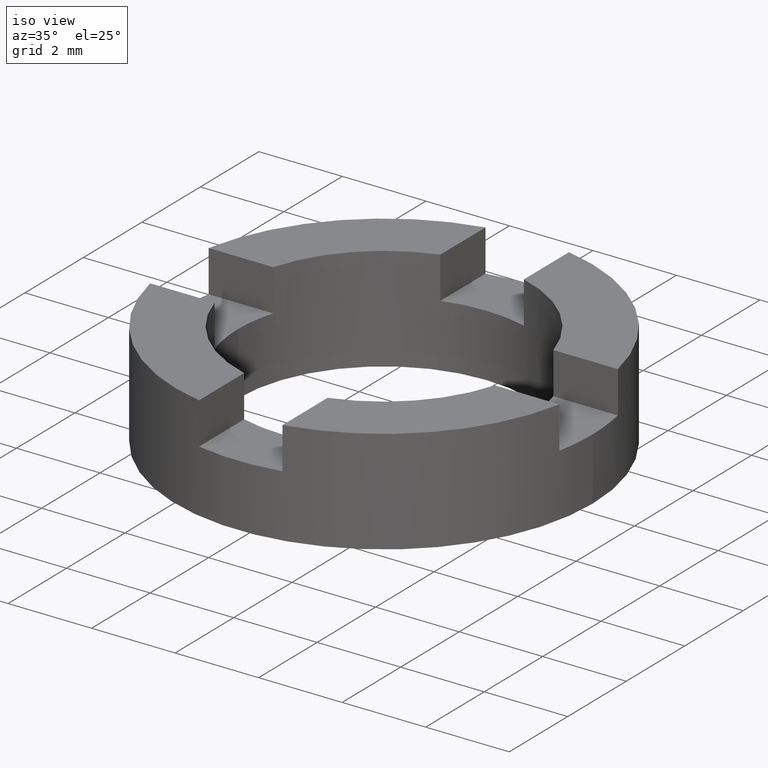
[diagram: clean part render]
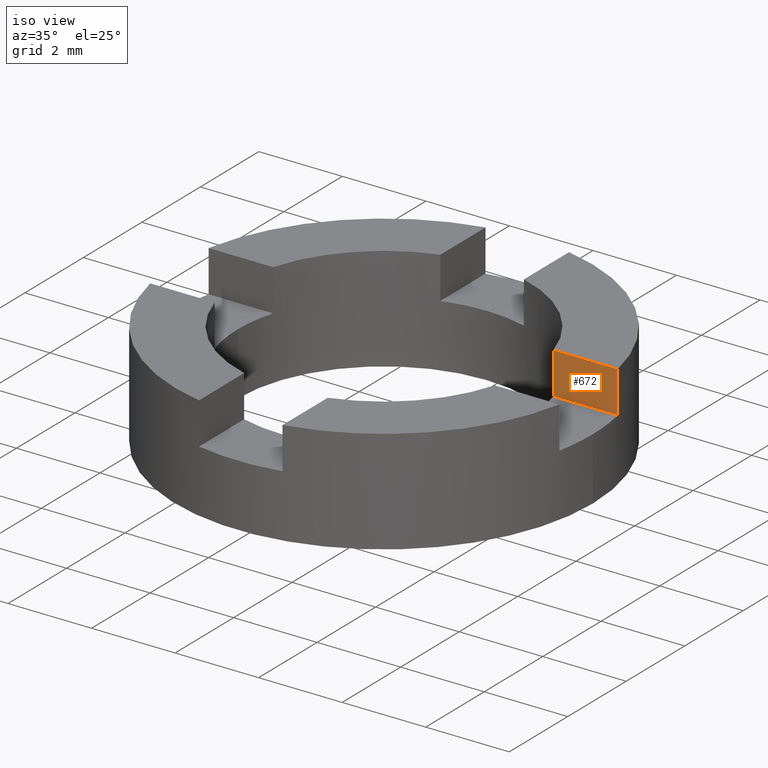
[diagram: same view with one face highlighted and labeled with its STEP entity id]
A machine part, iso view. The second image highlights one B-rep face of the part: STEP entity #672.
In plain terms, the highlighted planar face has unit normal (-0, 1, 0).
Its self-contained STEP definition (entity closure, byte-faithful):
#1 = CARTESIAN_POINT ( 'NONE',  ( 3.305037895306199403, 1.000000000000045297, 1.500000000000000000 ) ) ;
#8 = LINE ( 'NONE', #458, #266 ) ;
#17 = EDGE_CURVE ( 'NONE', #327, #613, #662, .T. ) ;
#45 = CARTESIAN_POINT ( 'NONE',  ( 3.354101966249671385, 1.000000000000045297, 2.500000000000000000 ) ) ;
#76 = LINE ( 'NONE', #45, #634 ) ;
#90 = VERTEX_POINT ( 'NONE', #727 ) ;
#115 = LINE ( 'NONE', #781, #119 ) ;
#119 = VECTOR ( 'NONE', #691, 1000.000000000000000 ) ;
#123 = DIRECTION ( 'NONE',  ( -1.000000000000000000, -1.279323200775836975E-16, -0.000000000000000000 ) ) ;
#128 = ORIENTED_EDGE ( 'NONE', *, *, #260, .T. ) ;
#132 = CARTESIAN_POINT ( 'NONE',  ( 3.354101966249671385, 1.000000000000045297, 1.500000000000000000 ) ) ;
#149 = ORIENTED_EDGE ( 'NONE', *, *, #17, .F. ) ;
#150 = DIRECTION ( 'NONE',  ( -0.000000000000000000, -0.000000000000000000, -1.000000000000000000 ) ) ;
#198 = DIRECTION ( 'NONE',  ( -0.000000000000000000, -0.000000000000000000, -1.000000000000000000 ) ) ;
#203 = AXIS2_PLACEMENT_3D ( 'NONE', #1, #484, #778 ) ;
#239 = FACE_OUTER_BOUND ( 'NONE', #373, .T. ) ;
#260 = EDGE_CURVE ( 'NONE', #651, #613, #76, .T. ) ;
#266 = VECTOR ( 'NONE', #198, 1000.000000000000000 ) ;
#323 = ORIENTED_EDGE ( 'NONE', *, *, #456, .T. ) ;
#327 = VERTEX_POINT ( 'NONE', #716 ) ;
#373 = EDGE_LOOP ( 'NONE', ( #323, #128, #149, #668 ) ) ;
#381 = VECTOR ( 'NONE', #123, 1000.000000000000000 ) ;
#456 = EDGE_CURVE ( 'NONE', #90, #651, #115, .T. ) ;
#457 = CARTESIAN_POINT ( 'NONE',  ( 3.354101966249671385, 1.000000000000045297, 2.500000000000000000 ) ) ;
#458 = CARTESIAN_POINT ( 'NONE',  ( 4.898979485566346881, 1.000000000000045519, 2.500000000000000000 ) ) ;
#484 = DIRECTION ( 'NONE',  ( -1.279323200775836975E-16, 1.000000000000000000, 0.000000000000000000 ) ) ;
#536 = EDGE_CURVE ( 'NONE', #90, #327, #8, .T. ) ;
#538 = PLANE ( 'NONE',  #203 ) ;
#613 = VERTEX_POINT ( 'NONE', #132 ) ;
#634 = VECTOR ( 'NONE', #150, 1000.000000000000000 ) ;
#651 = VERTEX_POINT ( 'NONE', #457 ) ;
#662 = LINE ( 'NONE', #749, #381 ) ;
#668 = ORIENTED_EDGE ( 'NONE', *, *, #536, .F. ) ;
#672 = ADVANCED_FACE ( 'NONE', ( #239 ), #538, .F. ) ;
#691 = DIRECTION ( 'NONE',  ( -1.000000000000000000, -1.279323200775836975E-16, -0.000000000000000000 ) ) ;
#716 = CARTESIAN_POINT ( 'NONE',  ( 4.898979485566346881, 1.000000000000045519, 1.500000000000000000 ) ) ;
#727 = CARTESIAN_POINT ( 'NONE',  ( 4.898979485566346881, 1.000000000000045519, 2.500000000000000000 ) ) ;
#749 = CARTESIAN_POINT ( 'NONE',  ( 3.305037895306199403, 1.000000000000045297, 1.500000000000000000 ) ) ;
#778 = DIRECTION ( 'NONE',  ( -1.000000000000000000, -1.279323200775836975E-16, 0.000000000000000000 ) ) ;
#781 = CARTESIAN_POINT ( 'NONE',  ( 3.305037895306199403, 1.000000000000045297, 2.500000000000000000 ) ) ;